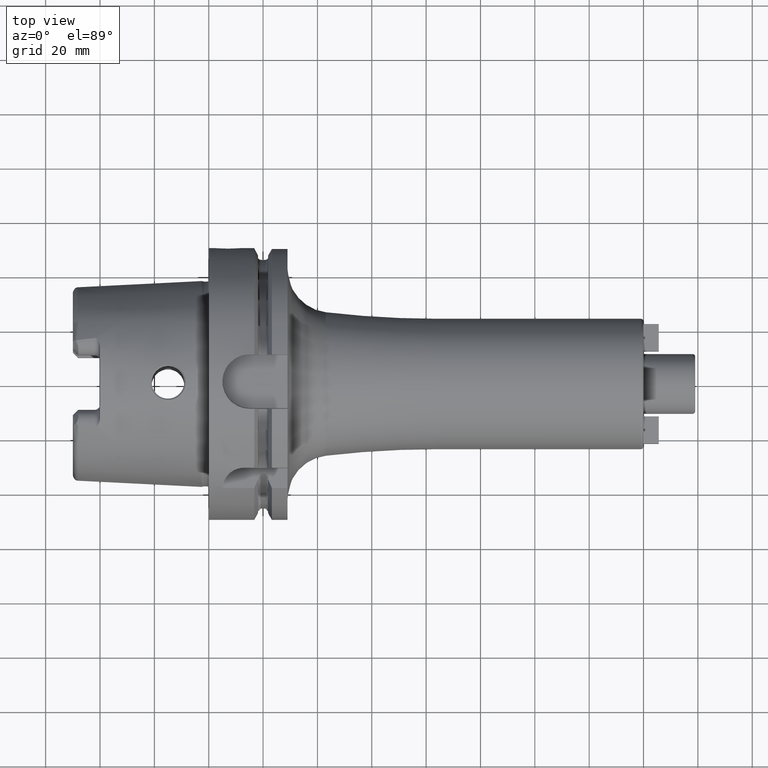
[diagram: clean part render]
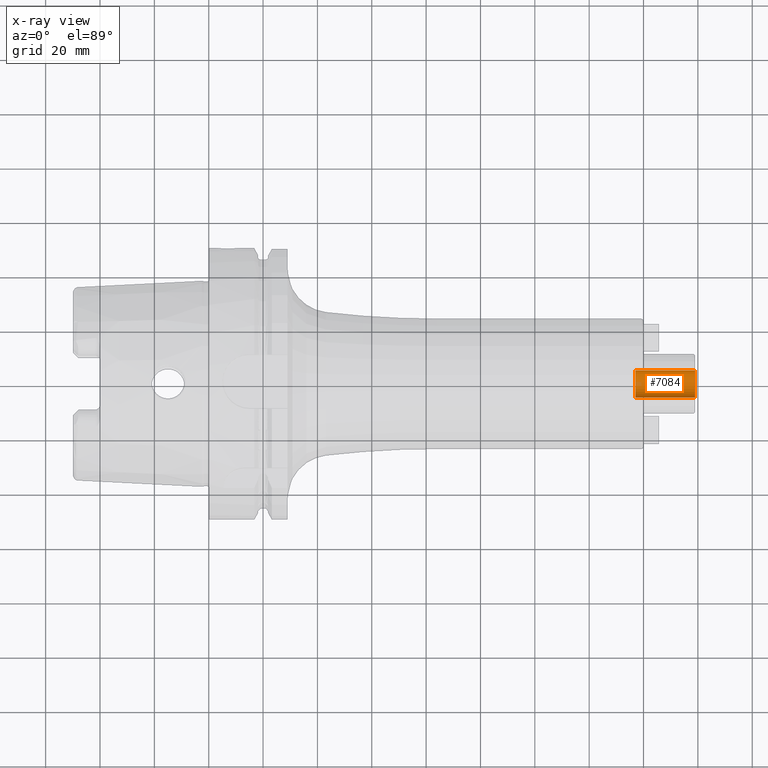
[diagram: x-ray — body ghosted, one internal face saturated and labeled with its STEP entity id]
A machine part, top view, then the same camera in x-ray: the body is ghosted and one INTERNAL B-rep face — a face not visible from any outside direction — is saturated and labeled: STEP entity #7084.
In plain terms, the highlighted cylindrical surface (edge-blend (fillet) strip) has radius 5 mm, axis along (1, 0, 0).
Its self-contained STEP definition (entity closure, byte-faithful):
#7019=CARTESIAN_POINT('',(1.79E2,0.E0,0.E0));
#7020=DIRECTION('',(-1.E0,0.E0,0.E0));
#7021=DIRECTION('',(0.E0,1.E0,0.E0));
#7022=AXIS2_PLACEMENT_3D('',#7019,#7020,#7021);
#7029=DIRECTION('',(-1.E0,0.E0,0.E0));
#7030=VECTOR('',#7029,2.2E1);
#7031=CARTESIAN_POINT('',(1.79E2,5.E0,0.E0));
#7032=LINE('',#7031,#7030);
#7033=DIRECTION('',(-1.E0,0.E0,0.E0));
#7034=VECTOR('',#7033,2.2E1);
#7035=CARTESIAN_POINT('',(1.79E2,-5.E0,0.E0));
#7036=LINE('',#7035,#7034);
#7037=CARTESIAN_POINT('',(1.57E2,0.E0,0.E0));
#7038=DIRECTION('',(1.E0,0.E0,0.E0));
#7039=DIRECTION('',(0.E0,-1.E0,0.E0));
#7040=AXIS2_PLACEMENT_3D('',#7037,#7038,#7039);
#7057=CARTESIAN_POINT('',(1.57E2,-5.E0,0.E0));
#7058=CARTESIAN_POINT('',(1.57E2,5.E0,0.E0));
#7059=VERTEX_POINT('',#7057);
#7060=VERTEX_POINT('',#7058);
#7061=CARTESIAN_POINT('',(1.79E2,-5.E0,0.E0));
#7062=CARTESIAN_POINT('',(1.79E2,5.E0,0.E0));
#7063=VERTEX_POINT('',#7061);
#7064=VERTEX_POINT('',#7062);
#7069=CARTESIAN_POINT('',(1.448816594876E2,0.E0,0.E0));
#7070=DIRECTION('',(1.E0,0.E0,0.E0));
#7071=DIRECTION('',(0.E0,-1.E0,0.E0));
#7072=AXIS2_PLACEMENT_3D('',#7069,#7070,#7071);
#7073=CYLINDRICAL_SURFACE('',#7072,5.E0);
#7075=ORIENTED_EDGE('',*,*,#7074,.T.);
#7077=ORIENTED_EDGE('',*,*,#7076,.T.);
#7079=ORIENTED_EDGE('',*,*,#7078,.T.);
#7081=ORIENTED_EDGE('',*,*,#7080,.F.);
#7082=EDGE_LOOP('',(#7075,#7077,#7079,#7081));
#7083=FACE_OUTER_BOUND('',#7082,.F.);
#7084=ADVANCED_FACE('',(#7083),#7073,.F.);
#7023=CIRCLE('',#7022,5.E0);
#7041=CIRCLE('',#7040,5.E0);
#7074=EDGE_CURVE('',#7064,#7063,#7023,.T.);
#7076=EDGE_CURVE('',#7063,#7059,#7036,.T.);
#7078=EDGE_CURVE('',#7059,#7060,#7041,.T.);
#7080=EDGE_CURVE('',#7064,#7060,#7032,.T.);